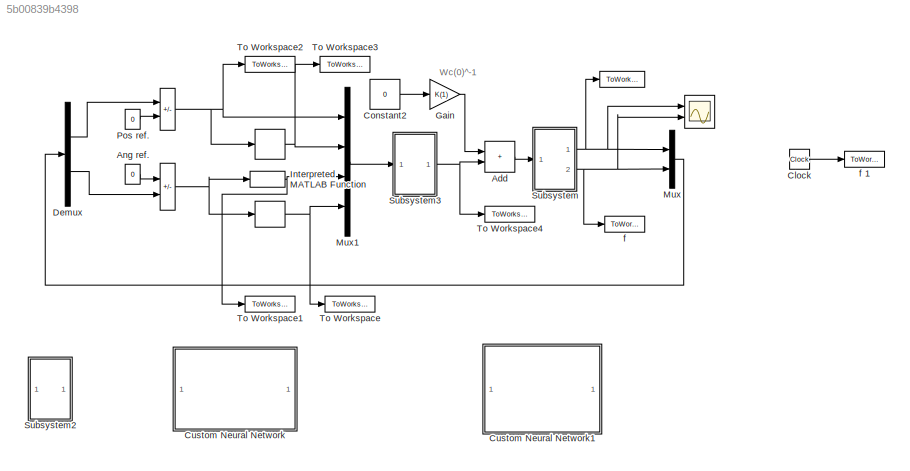
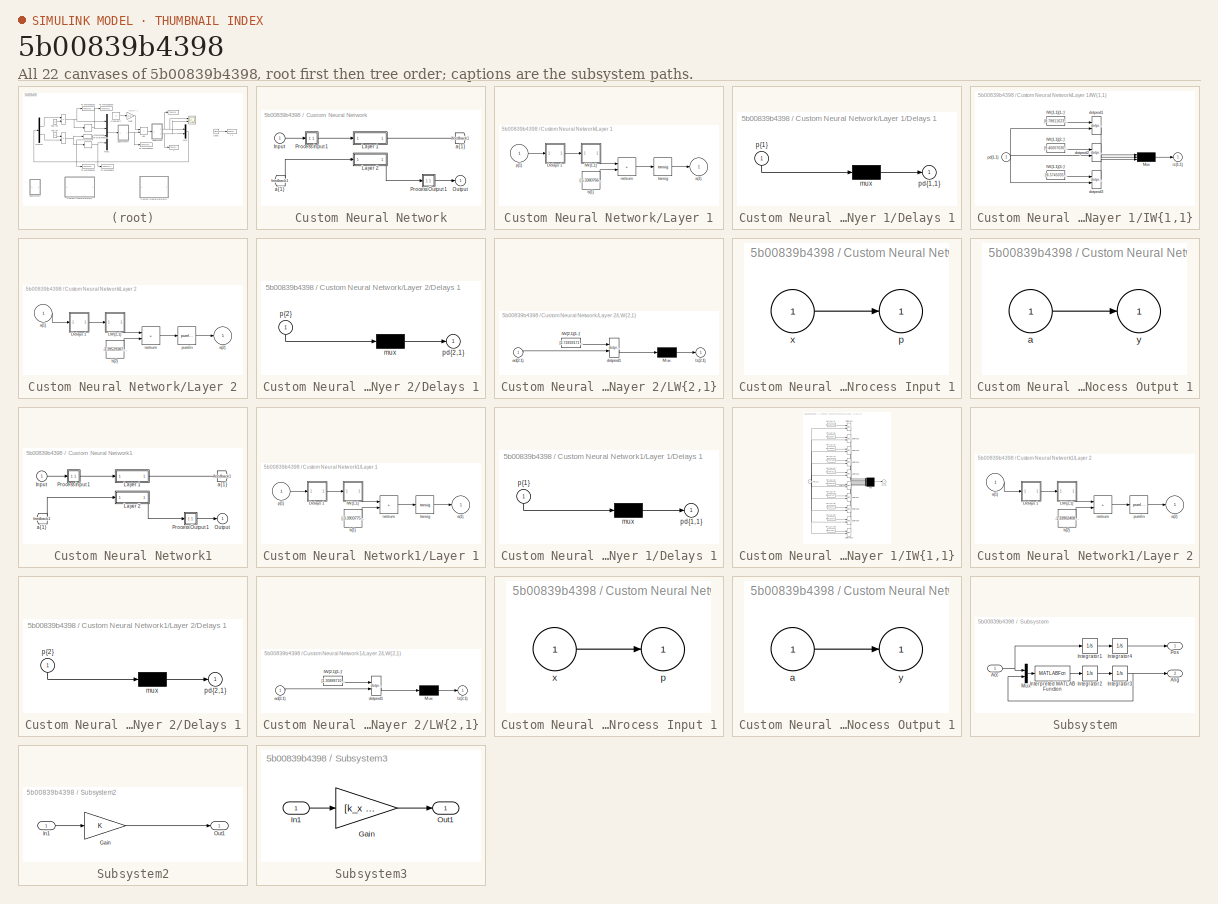
[diagram: thumbnail index - all 22 canvases of the model, root first then tree order]
MODEL slx_5b00839b4398
KIND model
CONFIG AbsTol = auto
CONFIG EnableMultiTasking = on
CONFIG FixedStep = 0.001
CONFIG MaxStep = 0.005
CONFIG MinStep = auto
CONFIG RelTol = 1e-3
CONFIG SampleTimeConstraint = Unconstrained
CONFIG SolverName = ode45
CONFIG StartTime = 0.0
CONFIG StopTime = 10
BLOCK [Sum]  
  IconShape = rectangular
  Inputs = -+
  Ports = [2, 1]
BLOCK [Derivative]   
BLOCK [Sum]      
  IconShape = rectangular
  Inputs = +-
  Ports = [2, 1]
BLOCK [Scope]       
  Floating = off
  NumInputPorts = 2
  Ports = [2]
  ScopeSpecificationString = C++SS(StrPVP('Location','[774, 99, 1317, 485]'),StrPVP('Open','off'),MxPVP('AxesTitles',54,'struct(''axes1'',''%<SignalLabel>'',''axes2'',''%<SignalLabel>'')'),MxPVP('ScopeGraphics',57,'struct(''FigureColor'',''[0.5 0.5 0.5]'',''AxesColor'',''[0 0 0]'',''AxesTickColor'',''[1 1 1]'',''LineColors'',''[1 1 0;1 0 1;0 1 1;1 0 0;0 1 0;0 0 1]'',''LineStyles'',''-|-|-|-|-|-'',''LineWidths'',''[0.5 0.5 0.5...<+336ch>
BLOCK [ToWorkspace]        
  MaxDataPoints = inf
  Ports = [1]
  SampleTime = 0.005
  VariableName = Pos
BLOCK [ToWorkspace]  f 
  MaxDataPoints = inf
  Ports = [1]
  SampleTime = 0.005
  VariableName = Ang
BLOCK [ToWorkspace]  f 1
  MaxDataPoints = inf
  Ports = [1]
  SampleTime = 0.005
  VariableName = Time
BLOCK [Sum] Add
  IconShape = rectangular
  Ports = [2, 1]
BLOCK [Constant] Ang ref.
  Value = 0
BLOCK [Clock] Clock
BLOCK [Constant] Constant2
  Value = 0
BLOCK [SubSystem] Custom Neural Network
  Ports = [1, 1]
  RequestExecContextInheritance = off
BLOCK [From] Custom Neural Network/ a{1} 
  GotoTag = feedback1
BLOCK [Inport] Custom Neural Network/Input
  PortDimensions = 4
BLOCK [SubSystem] Custom Neural Network/Layer 1
  Ports = [1, 1]
  RequestExecContextInheritance = off
BLOCK [SubSystem] Custom Neural Network/Layer 1/Delays 1
  Ports = [1, 1]
  RequestExecContextInheritance = off
BLOCK [Mux] Custom Neural Network/Layer 1/Delays 1/mux
  Inputs = 1
  Ports = [1, 1]
BLOCK [Outport] Custom Neural Network/Layer 1/Delays 1/pd{1,1}
BLOCK [Inport] Custom Neural Network/Layer 1/Delays 1/p{1}
  NameLocation = left
  PortDimensions = 4
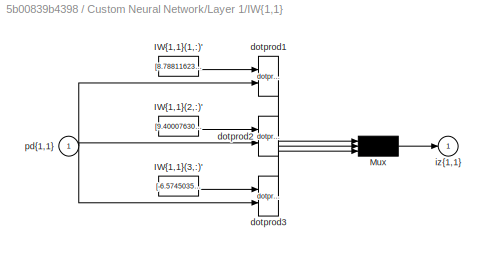
BLOCK [SubSystem] Custom Neural Network/Layer 1/IW{1,1}
  Ports = [1, 1]
  RequestExecContextInheritance = off
BLOCK [Constant] Custom Neural Network/Layer 1/IW{1,1}/IW{1,1}(1,:)'
  Value = [8.788116238367390309349502786062657833099365234375;2.211419440803642277870721954968757927417755126953125;-3.4270490483573556872443077736534178256988525390625;0.8696819432224425217015095768147148191928863525390625]
BLOCK [Constant] Custom Neural Network/Layer 1/IW{1,1}/IW{1,1}(2,:)'
  Value = [9.40007630482056555365488748066127300262451171875;-1.0231412537374680038482210875372402369976043701171875;1.23096216036136407723233787692151963710784912109375;0.8313740538845697525260902693844400346279144287109375]
BLOCK [Constant] Custom Neural Network/Layer 1/IW{1,1}/IW{1,1}(3,:)'
  Value = [-6.57450355673012065693683325662277638912200927734375;-0.347177306486717573985600893138325773179531097412109375;7.3748618595011823373397419345565140247344970703125;0.54792916693979598630193095232243649661540985107421875]
BLOCK [Mux] Custom Neural Network/Layer 1/IW{1,1}/Mux
  Inputs = 3
  Ports = [3, 1]
BLOCK [Reference] Custom Neural Network/Layer 1/IW{1,1}/dotprod1  REF=neural/Weight Functions/dotprod
  Ports = [2, 1]
  SourceBlock = neural/Weight Functions/dotprod
  SourceProductBaseCode = NN
  SourceType = DOTPROD
BLOCK [Reference] Custom Neural Network/Layer 1/IW{1,1}/dotprod2  REF=neural/Weight Functions/dotprod
  Ports = [2, 1]
  SourceBlock = neural/Weight Functions/dotprod
  SourceProductBaseCode = NN
  SourceType = DOTPROD
BLOCK [Reference] Custom Neural Network/Layer 1/IW{1,1}/dotprod3  REF=neural/Weight Functions/dotprod
  Ports = [2, 1]
  SourceBlock = neural/Weight Functions/dotprod
  SourceProductBaseCode = NN
  SourceType = DOTPROD
BLOCK [Outport] Custom Neural Network/Layer 1/IW{1,1}/iz{1,1}
BLOCK [Inport] Custom Neural Network/Layer 1/IW{1,1}/pd{1,1}
  PortDimensions = 4
BLOCK [Outport] Custom Neural Network/Layer 1/a{1}
  InitialOutput = [0;0;0]
BLOCK [Constant] Custom Neural Network/Layer 1/b{1}
  Value = [-5.33807660788202031909577272017486393451690673828125;-0.8507337902239300309048530834843404591083526611328125;1.3481654754592573564053736845380626618862152099609375]
BLOCK [Sum] Custom Neural Network/Layer 1/netsum
  IconShape = rectangular
  InputSameDT = on
  Inputs = 2
  OutDataTypeStr = Inherit: Same as first input
  Ports = [2, 1]
  SaturateOnIntegerOverflow = on
BLOCK [Inport] Custom Neural Network/Layer 1/p{1}
  PortDimensions = 4
BLOCK [Reference] Custom Neural Network/Layer 1/tansig  REF=neural/Transfer Functions/tansig
  Ports = [1, 1]
  SourceBlock = neural/Transfer Functions/tansig
  SourceProductBaseCode = NN
  SourceType = TANSIG
BLOCK [SubSystem] Custom Neural Network/Layer 2
  Ports = [1, 1]
  RequestExecContextInheritance = off
BLOCK [SubSystem] Custom Neural Network/Layer 2/Delays 1
  Ports = [1, 1]
  RequestExecContextInheritance = off
BLOCK [Mux] Custom Neural Network/Layer 2/Delays 1/mux
  Inputs = 1
  Ports = [1, 1]
BLOCK [Outport] Custom Neural Network/Layer 2/Delays 1/pd{2,1}
BLOCK [Inport] Custom Neural Network/Layer 2/Delays 1/p{2}
  NameLocation = left
  PortDimensions = 3
BLOCK [SubSystem] Custom Neural Network/Layer 2/LW{2,1}
  Ports = [1, 1]
  RequestExecContextInheritance = off
BLOCK [Constant] Custom Neural Network/Layer 2/LW{2,1}/IW{2,1}(1,:)'
  Value = [2.728391715390324545609246342792175710201263427734375;2.449347518211015373168493169941939413547515869140625;8.94903614505957278879577643238008022308349609375]
BLOCK [Mux] Custom Neural Network/Layer 2/LW{2,1}/Mux
  Inputs = 1
  Ports = [1, 1]
BLOCK [Inport] Custom Neural Network/Layer 2/LW{2,1}/ad{2,1}
  PortDimensions = 3
BLOCK [Reference] Custom Neural Network/Layer 2/LW{2,1}/dotprod1  REF=neural/Weight Functions/dotprod
  Ports = [2, 1]
  SourceBlock = neural/Weight Functions/dotprod
  SourceProductBaseCode = NN
  SourceType = DOTPROD
BLOCK [Outport] Custom Neural Network/Layer 2/LW{2,1}/lz{2,1}
BLOCK [Inport] Custom Neural Network/Layer 2/a{1} 
  PortDimensions = 3
BLOCK [Outport] Custom Neural Network/Layer 2/a{2}
  InitialOutput = 0
BLOCK [Constant] Custom Neural Network/Layer 2/b{2}
  Value = -3.395293879688609184341885338653810322284698486328125
BLOCK [Sum] Custom Neural Network/Layer 2/netsum
  IconShape = rectangular
  InputSameDT = on
  Inputs = 2
  OutDataTypeStr = Inherit: Same as first input
  Ports = [2, 1]
  SaturateOnIntegerOverflow = on
BLOCK [Reference] Custom Neural Network/Layer 2/purelin  REF=neural/Transfer Functions/purelin
  Ports = [1, 1]
  SourceBlock = neural/Transfer Functions/purelin
  SourceProductBaseCode = NN
  SourceType = PURELIN
BLOCK [Outport] Custom Neural Network/Output
  InitialOutput = 0
BLOCK [SubSystem] Custom Neural Network/Process Input 1
  Ports = [1, 1]
  RequestExecContextInheritance = off
BLOCK [Outport] Custom Neural Network/Process Input 1/p
  PortDimensions = 4
BLOCK [Inport] Custom Neural Network/Process Input 1/x
  PortDimensions = 4
BLOCK [SubSystem] Custom Neural Network/Process Output 1
  Ports = [1, 1]
  RequestExecContextInheritance = off
BLOCK [Inport] Custom Neural Network/Process Output 1/a
  PortDimensions = 1
BLOCK [Outport] Custom Neural Network/Process Output 1/y
  PortDimensions = 1
BLOCK [Goto] Custom Neural Network/a{1}
  GotoTag = feedback1
BLOCK [SubSystem] Custom Neural Network1
  Ports = [1, 1]
  RequestExecContextInheritance = off
BLOCK [From] Custom Neural Network1/ a{1} 
  GotoTag = feedback1
BLOCK [Inport] Custom Neural Network1/Input
  PortDimensions = 4
BLOCK [SubSystem] Custom Neural Network1/Layer 1
  Ports = [1, 1]
  RequestExecContextInheritance = off
BLOCK [SubSystem] Custom Neural Network1/Layer 1/Delays 1
  Ports = [1, 1]
  RequestExecContextInheritance = off
BLOCK [Mux] Custom Neural Network1/Layer 1/Delays 1/mux
  Inputs = 1
  Ports = [1, 1]
BLOCK [Outport] Custom Neural Network1/Layer 1/Delays 1/pd{1,1}
BLOCK [Inport] Custom Neural Network1/Layer 1/Delays 1/p{1}
  NameLocation = left
  PortDimensions = 4
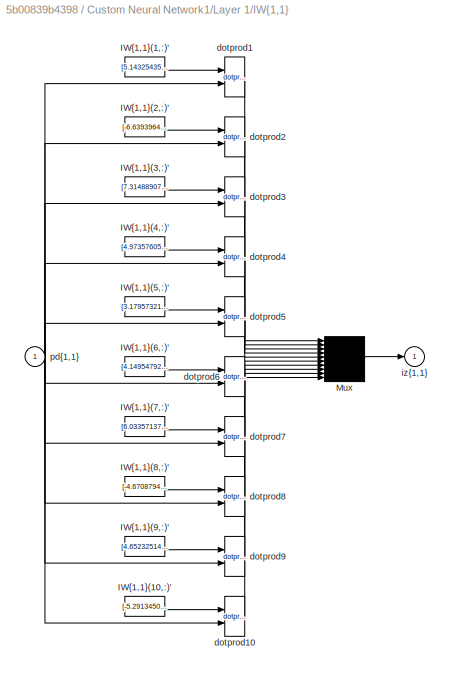
BLOCK [SubSystem] Custom Neural Network1/Layer 1/IW{1,1}
  Ports = [1, 1]
  RequestExecContextInheritance = off
BLOCK [Constant] Custom Neural Network1/Layer 1/IW{1,1}/IW{1,1}(1,:)'
  Value = [5.1432543552289455845993870752863585948944091796875;4.469391174233845021035449462942779064178466796875;-4.1927686933818364423132152296602725982666015625;-3.44472172027185674636484691291116178035736083984375]
BLOCK [Constant] Custom Neural Network1/Layer 1/IW{1,1}/IW{1,1}(10,:)'
  Value = [-5.29134503231588748661806675954721868038177490234375;-4.372850896115298979793806211091578006744384765625;11.37319168469418428912831586785614490509033203125;-0.2721661002850657151697078006691299378871917724609375]
BLOCK [Constant] Custom Neural Network1/Layer 1/IW{1,1}/IW{1,1}(2,:)'
  Value = [-6.6393964955801170191307392087765038013458251953125;-5.40320646231172663220831964281387627124786376953125;-2.51564538361761425022677940432913601398468017578125;-0.7509183490651754055988931213505566120147705078125]
BLOCK [Constant] Custom Neural Network1/Layer 1/IW{1,1}/IW{1,1}(3,:)'
  Value = [7.31488907967001811272211853065527975559234619140625;-3.167850398077953766318159978254698216915130615234375;11.016461689160319536995302769355475902557373046875;2.85105027438527969252390903420746326446533203125]
BLOCK [Constant] Custom Neural Network1/Layer 1/IW{1,1}/IW{1,1}(4,:)'
  Value = [4.97357605196770435895814443938434123992919921875;-3.15696404683693554460433006170205771923065185546875;7.92906744987438916183464243658818304538726806640625;-1.1834575779052325383844390671583823859691619873046875]
BLOCK [Constant] Custom Neural Network1/Layer 1/IW{1,1}/IW{1,1}(5,:)'
  Value = [3.17957321608935838952447738847695291042327880859375;-1.2856011122821267012028556564473547041416168212890625;-9.4088218152349707423809377360157668590545654296875;-2.810738899696803461125682588317431509494781494140625]
BLOCK [Constant] Custom Neural Network1/Layer 1/IW{1,1}/IW{1,1}(6,:)'
  Value = [4.149547925062268660667541553266346454620361328125;2.703979131322606921372653232538141310214996337890625;-1.14260681198289137938672865857370197772979736328125;-0.50596910030087638432405583444051444530487060546875]
BLOCK [Constant] Custom Neural Network1/Layer 1/IW{1,1}/IW{1,1}(7,:)'
  Value = [6.0335713723185566692563952528871595859527587890625;2.886312779991163868231751621351577341556549072265625;-1.957812224725926864010716599295847117900848388671875;7.03354953202478494489469085237942636013031005859375]
BLOCK [Constant] Custom Neural Network1/Layer 1/IW{1,1}/IW{1,1}(8,:)'
  Value = [-4.670879482405059235361477476544678211212158203125;-3.687614773339081608583001070655882358551025390625;10.20752542701369947053535724990069866180419921875;-3.262808084250979678841986242332495748996734619140625]
BLOCK [Constant] Custom Neural Network1/Layer 1/IW{1,1}/IW{1,1}(9,:)'
  Value = [4.65232514796957641323160714819096028804779052734375;3.38455617303662048556134323007427155971527099609375;8.19347156434329093599444604478776454925537109375;0.9301402998975494273992126181838102638721466064453125]
BLOCK [Mux] Custom Neural Network1/Layer 1/IW{1,1}/Mux
  Inputs = 10
  Ports = [10, 1]
BLOCK [Reference] Custom Neural Network1/Layer 1/IW{1,1}/dotprod1  REF=neural/Weight Functions/dotprod
  Ports = [2, 1]
  SourceBlock = neural/Weight Functions/dotprod
  SourceProductBaseCode = NN
  SourceType = DOTPROD
BLOCK [Reference] Custom Neural Network1/Layer 1/IW{1,1}/dotprod10  REF=neural/Weight Functions/dotprod
  Ports = [2, 1]
  SourceBlock = neural/Weight Functions/dotprod
  SourceProductBaseCode = NN
  SourceType = DOTPROD
BLOCK [Reference] Custom Neural Network1/Layer 1/IW{1,1}/dotprod2  REF=neural/Weight Functions/dotprod
  Ports = [2, 1]
  SourceBlock = neural/Weight Functions/dotprod
  SourceProductBaseCode = NN
  SourceType = DOTPROD
BLOCK [Reference] Custom Neural Network1/Layer 1/IW{1,1}/dotprod3  REF=neural/Weight Functions/dotprod
  Ports = [2, 1]
  SourceBlock = neural/Weight Functions/dotprod
  SourceProductBaseCode = NN
  SourceType = DOTPROD
BLOCK [Reference] Custom Neural Network1/Layer 1/IW{1,1}/dotprod4  REF=neural/Weight Functions/dotprod
  Ports = [2, 1]
  SourceBlock = neural/Weight Functions/dotprod
  SourceProductBaseCode = NN
  SourceType = DOTPROD
BLOCK [Reference] Custom Neural Network1/Layer 1/IW{1,1}/dotprod5  REF=neural/Weight Functions/dotprod
  Ports = [2, 1]
  SourceBlock = neural/Weight Functions/dotprod
  SourceProductBaseCode = NN
  SourceType = DOTPROD
BLOCK [Reference] Custom Neural Network1/Layer 1/IW{1,1}/dotprod6  REF=neural/Weight Functions/dotprod
  Ports = [2, 1]
  SourceBlock = neural/Weight Functions/dotprod
  SourceProductBaseCode = NN
  SourceType = DOTPROD
BLOCK [Reference] Custom Neural Network1/Layer 1/IW{1,1}/dotprod7  REF=neural/Weight Functions/dotprod
  Ports = [2, 1]
  SourceBlock = neural/Weight Functions/dotprod
  SourceProductBaseCode = NN
  SourceType = DOTPROD
BLOCK [Reference] Custom Neural Network1/Layer 1/IW{1,1}/dotprod8  REF=neural/Weight Functions/dotprod
  Ports = [2, 1]
  SourceBlock = neural/Weight Functions/dotprod
  SourceProductBaseCode = NN
  SourceType = DOTPROD
BLOCK [Reference] Custom Neural Network1/Layer 1/IW{1,1}/dotprod9  REF=neural/Weight Functions/dotprod
  Ports = [2, 1]
  SourceBlock = neural/Weight Functions/dotprod
  SourceProductBaseCode = NN
  SourceType = DOTPROD
BLOCK [Outport] Custom Neural Network1/Layer 1/IW{1,1}/iz{1,1}
BLOCK [Inport] Custom Neural Network1/Layer 1/IW{1,1}/pd{1,1}
  PortDimensions = 4
BLOCK [Outport] Custom Neural Network1/Layer 1/a{1}
  InitialOutput = [0;0;0;0;0;0;0;0;0;0]
BLOCK [Constant] Custom Neural Network1/Layer 1/b{1}
  Value = [-3.390377575891498462823392401332966983318328857421875;4.60794851418720430302755630691535770893096923828125;-2.678592471786632955854656756855547428131103515625;0.278246721004156205570012616590247489511966705322265625;-0.033799831666493529436223752782098017632961273193359375;-1.22539643870191827801363615435548126697540283203125;-2.279691349452515947149322528275661170482635498046875;2.9745859651923...<+141ch>
BLOCK [Sum] Custom Neural Network1/Layer 1/netsum
  IconShape = rectangular
  InputSameDT = on
  Inputs = 2
  OutDataTypeStr = Inherit: Same as first input
  Ports = [2, 1]
  SaturateOnIntegerOverflow = on
BLOCK [Inport] Custom Neural Network1/Layer 1/p{1}
  PortDimensions = 4
BLOCK [Reference] Custom Neural Network1/Layer 1/tansig  REF=neural/Transfer Functions/tansig
  Ports = [1, 1]
  SourceBlock = neural/Transfer Functions/tansig
  SourceProductBaseCode = NN
  SourceType = TANSIG
BLOCK [SubSystem] Custom Neural Network1/Layer 2
  Ports = [1, 1]
  RequestExecContextInheritance = off
BLOCK [SubSystem] Custom Neural Network1/Layer 2/Delays 1
  Ports = [1, 1]
  RequestExecContextInheritance = off
BLOCK [Mux] Custom Neural Network1/Layer 2/Delays 1/mux
  Inputs = 1
  Ports = [1, 1]
BLOCK [Outport] Custom Neural Network1/Layer 2/Delays 1/pd{2,1}
BLOCK [Inport] Custom Neural Network1/Layer 2/Delays 1/p{2}
  NameLocation = left
  PortDimensions = 10
BLOCK [SubSystem] Custom Neural Network1/Layer 2/LW{2,1}
  Ports = [1, 1]
  RequestExecContextInheritance = off
BLOCK [Constant] Custom Neural Network1/Layer 2/LW{2,1}/IW{2,1}(1,:)'
  Value = [1.30888710546423236991131489048711955547332763671875;-0.3632038085483875189396485438919626176357269287109375;0.0037598644263427127842902564225369133055210113525390625;0.075995879083810724541336867332574911415576934814453125;-0.259353152725069480144526323783793486654758453369140625;2.47897973950020666933369284379296004772186279296875;-0.02365206743952484591542173575362539850175380706787109375;-0.1...<+158ch>
BLOCK [Mux] Custom Neural Network1/Layer 2/LW{2,1}/Mux
  Inputs = 1
  Ports = [1, 1]
BLOCK [Inport] Custom Neural Network1/Layer 2/LW{2,1}/ad{2,1}
  PortDimensions = 10
BLOCK [Reference] Custom Neural Network1/Layer 2/LW{2,1}/dotprod1  REF=neural/Weight Functions/dotprod
  Ports = [2, 1]
  SourceBlock = neural/Weight Functions/dotprod
  SourceProductBaseCode = NN
  SourceType = DOTPROD
BLOCK [Outport] Custom Neural Network1/Layer 2/LW{2,1}/lz{2,1}
BLOCK [Inport] Custom Neural Network1/Layer 2/a{1} 
  PortDimensions = 10
BLOCK [Outport] Custom Neural Network1/Layer 2/a{2}
  InitialOutput = 0
BLOCK [Constant] Custom Neural Network1/Layer 2/b{2}
  Value = -1.33902408913108939003677733126096427440643310546875
BLOCK [Sum] Custom Neural Network1/Layer 2/netsum
  IconShape = rectangular
  InputSameDT = on
  Inputs = 2
  OutDataTypeStr = Inherit: Same as first input
  Ports = [2, 1]
  SaturateOnIntegerOverflow = on
BLOCK [Reference] Custom Neural Network1/Layer 2/purelin  REF=neural/Transfer Functions/purelin
  Ports = [1, 1]
  SourceBlock = neural/Transfer Functions/purelin
  SourceProductBaseCode = NN
  SourceType = PURELIN
BLOCK [Outport] Custom Neural Network1/Output
  InitialOutput = 0
BLOCK [SubSystem] Custom Neural Network1/Process Input 1
  Ports = [1, 1]
  RequestExecContextInheritance = off
BLOCK [Outport] Custom Neural Network1/Process Input 1/p
  PortDimensions = 4
BLOCK [Inport] Custom Neural Network1/Process Input 1/x
  PortDimensions = 4
BLOCK [SubSystem] Custom Neural Network1/Process Output 1
  Ports = [1, 1]
  RequestExecContextInheritance = off
BLOCK [Inport] Custom Neural Network1/Process Output 1/a
  PortDimensions = 1
BLOCK [Outport] Custom Neural Network1/Process Output 1/y
  PortDimensions = 1
BLOCK [Goto] Custom Neural Network1/a{1}
  GotoTag = feedback1
BLOCK [Demux] Demux
  Outputs = 2
  Ports = [1, 2]
BLOCK [Gain] Gain
  Gain = K(1)
BLOCK [MATLABFcn] Interpreted MATLAB Function
  MATLABFcn = change(u)
  Ports = [1, 1]
BLOCK [Mux] Mux
  DisplayOption = bar
  Inputs = 2
  Ports = [2, 1]
BLOCK [Mux] Mux1
  DisplayOption = bar
  Ports = [4, 1]
BLOCK [Constant] Pos ref.
  Value = 0
BLOCK [SubSystem] Subsystem
  Ports = [1, 2]
  RequestExecContextInheritance = off
BLOCK [Inport] Subsystem/Acc
BLOCK [Outport] Subsystem/Ang
  Port = 2
BLOCK [Integrator] Subsystem/Integrator1
  Ports = [1, 1]
BLOCK [Integrator] Subsystem/Integrator2
  Ports = [1, 1]
BLOCK [Integrator] Subsystem/Integrator3
  InitialCondition = 10*pi/180
  Ports = [1, 1]
BLOCK [Integrator] Subsystem/Integrator4
  Ports = [1, 1]
BLOCK [MATLABFcn] Subsystem/Interpreted MATLAB Function
  MATLABFcn = lqr1_funtion(u)
  Output1D = off
  OutputDimensions = 1
  Ports = [1, 1]
BLOCK [Mux] Subsystem/Mux
  DisplayOption = bar
  Inputs = 2
  Ports = [2, 1]
BLOCK [Outport] Subsystem/Pos
BLOCK [SubSystem] Subsystem2
  Ports = [1, 1]
  RequestExecContextInheritance = off
BLOCK [Gain] Subsystem2/Gain
  Gain = K
  Multiplication = Matrix(K*u) (u vector)
BLOCK [Inport] Subsystem2/In1
BLOCK [Outport] Subsystem2/Out1
BLOCK [SubSystem] Subsystem3
  Ports = [1, 1]
  RequestExecContextInheritance = off
BLOCK [Gain] Subsystem3/Gain
  Gain = [k_x   k_dot_x  k_ang    k_dot_ang]
  Multiplication = Matrix(K*u) (u vector)
BLOCK [Inport] Subsystem3/In1
BLOCK [Outport] Subsystem3/Out1
BLOCK [ToWorkspace] To Workspace
  FixptAsFi = on
  MaxDataPoints = inf
  Ports = [1]
  SampleTime = -1
  VariableName = GSF_ang1
BLOCK [ToWorkspace] To Workspace1
  FixptAsFi = on
  MaxDataPoints = inf
  Ports = [1]
  SampleTime = -1
  VariableName = GSF_ang
BLOCK [ToWorkspace] To Workspace2
  FixptAsFi = on
  MaxDataPoints = inf
  Ports = [1]
  SampleTime = -1
  VariableName = GSF_pos
BLOCK [ToWorkspace] To Workspace3
  FixptAsFi = on
  MaxDataPoints = inf
  Ports = [1]
  SampleTime = -1
  VariableName = GSF_pos1
BLOCK [ToWorkspace] To Workspace4
  FixptAsFi = on
  MaxDataPoints = inf
  Ports = [1]
  SampleTime = -1
  VariableName = GSF_acc
ANNOTATION (root): Wc(0)^-1
NET      :1 ->   :1, Interpreted MATLAB Function:1
NET   :1 -> Mux1:4, To Workspace:1
NET  :1 ->  :1, Mux1:1, Mux1:2, To Workspace2:1, To Workspace3:1
LINE Add:1 -> Subsystem:1
LINE Ang ref.:1 ->      :1
LINE Clock:1 ->  f 1:1
LINE Constant2:1 -> Gain:1
LINE Custom Neural Network/ a{1} :1 -> Custom Neural Network/Layer 2:1
LINE Custom Neural Network/Input:1 -> Custom Neural Network/Process Input 1:1
LINE Custom Neural Network/Layer 1/Delays 1/mux:1 -> Custom Neural Network/Layer 1/Delays 1/pd{1,1}:1
LINE Custom Neural Network/Layer 1/Delays 1/p{1}:1 -> Custom Neural Network/Layer 1/Delays 1/mux:1
LINE Custom Neural Network/Layer 1/Delays 1:1 -> Custom Neural Network/Layer 1/IW{1,1}:1
LINE Custom Neural Network/Layer 1/IW{1,1}/IW{1,1}(1,:)':1 -> Custom Neural Network/Layer 1/IW{1,1}/dotprod1:1
LINE Custom Neural Network/Layer 1/IW{1,1}/IW{1,1}(2,:)':1 -> Custom Neural Network/Layer 1/IW{1,1}/dotprod2:1
LINE Custom Neural Network/Layer 1/IW{1,1}/IW{1,1}(3,:)':1 -> Custom Neural Network/Layer 1/IW{1,1}/dotprod3:1
LINE Custom Neural Network/Layer 1/IW{1,1}/Mux:1 -> Custom Neural Network/Layer 1/IW{1,1}/iz{1,1}:1
LINE Custom Neural Network/Layer 1/IW{1,1}/dotprod1:1 -> Custom Neural Network/Layer 1/IW{1,1}/Mux:1
LINE Custom Neural Network/Layer 1/IW{1,1}/dotprod2:1 -> Custom Neural Network/Layer 1/IW{1,1}/Mux:2
LINE Custom Neural Network/Layer 1/IW{1,1}/dotprod3:1 -> Custom Neural Network/Layer 1/IW{1,1}/Mux:3
NET Custom Neural Network/Layer 1/IW{1,1}/pd{1,1}:1 -> Custom Neural Network/Layer 1/IW{1,1}/dotprod1:2, Custom Neural Network/Layer 1/IW{1,1}/dotprod2:2, Custom Neural Network/Layer 1/IW{1,1}/dotprod3:2
LINE Custom Neural Network/Layer 1/IW{1,1}:1 -> Custom Neural Network/Layer 1/netsum:1
LINE Custom Neural Network/Layer 1/b{1}:1 -> Custom Neural Network/Layer 1/netsum:2
LINE Custom Neural Network/Layer 1/netsum:1 -> Custom Neural Network/Layer 1/tansig:1
LINE Custom Neural Network/Layer 1/p{1}:1 -> Custom Neural Network/Layer 1/Delays 1:1
LINE Custom Neural Network/Layer 1/tansig:1 -> Custom Neural Network/Layer 1/a{1}:1
LINE Custom Neural Network/Layer 1:1 -> Custom Neural Network/a{1}:1
LINE Custom Neural Network/Layer 2/Delays 1/mux:1 -> Custom Neural Network/Layer 2/Delays 1/pd{2,1}:1
LINE Custom Neural Network/Layer 2/Delays 1/p{2}:1 -> Custom Neural Network/Layer 2/Delays 1/mux:1
LINE Custom Neural Network/Layer 2/Delays 1:1 -> Custom Neural Network/Layer 2/LW{2,1}:1
LINE Custom Neural Network/Layer 2/LW{2,1}/IW{2,1}(1,:)':1 -> Custom Neural Network/Layer 2/LW{2,1}/dotprod1:1
LINE Custom Neural Network/Layer 2/LW{2,1}/Mux:1 -> Custom Neural Network/Layer 2/LW{2,1}/lz{2,1}:1
LINE Custom Neural Network/Layer 2/LW{2,1}/ad{2,1}:1 -> Custom Neural Network/Layer 2/LW{2,1}/dotprod1:2
LINE Custom Neural Network/Layer 2/LW{2,1}/dotprod1:1 -> Custom Neural Network/Layer 2/LW{2,1}/Mux:1
LINE Custom Neural Network/Layer 2/LW{2,1}:1 -> Custom Neural Network/Layer 2/netsum:1
LINE Custom Neural Network/Layer 2/a{1} :1 -> Custom Neural Network/Layer 2/Delays 1:1
LINE Custom Neural Network/Layer 2/b{2}:1 -> Custom Neural Network/Layer 2/netsum:2
LINE Custom Neural Network/Layer 2/netsum:1 -> Custom Neural Network/Layer 2/purelin:1
LINE Custom Neural Network/Layer 2/purelin:1 -> Custom Neural Network/Layer 2/a{2}:1
LINE Custom Neural Network/Layer 2:1 -> Custom Neural Network/Process Output 1:1
LINE Custom Neural Network/Process Input 1/x:1 -> Custom Neural Network/Process Input 1/p:1
LINE Custom Neural Network/Process Input 1:1 -> Custom Neural Network/Layer 1:1
LINE Custom Neural Network/Process Output 1/a:1 -> Custom Neural Network/Process Output 1/y:1
LINE Custom Neural Network/Process Output 1:1 -> Custom Neural Network/Output:1
LINE Custom Neural Network1/ a{1} :1 -> Custom Neural Network1/Layer 2:1
LINE Custom Neural Network1/Input:1 -> Custom Neural Network1/Process Input 1:1
LINE Custom Neural Network1/Layer 1/Delays 1/mux:1 -> Custom Neural Network1/Layer 1/Delays 1/pd{1,1}:1
LINE Custom Neural Network1/Layer 1/Delays 1/p{1}:1 -> Custom Neural Network1/Layer 1/Delays 1/mux:1
LINE Custom Neural Network1/Layer 1/Delays 1:1 -> Custom Neural Network1/Layer 1/IW{1,1}:1
LINE Custom Neural Network1/Layer 1/IW{1,1}/IW{1,1}(1,:)':1 -> Custom Neural Network1/Layer 1/IW{1,1}/dotprod1:1
LINE Custom Neural Network1/Layer 1/IW{1,1}/IW{1,1}(10,:)':1 -> Custom Neural Network1/Layer 1/IW{1,1}/dotprod10:1
LINE Custom Neural Network1/Layer 1/IW{1,1}/IW{1,1}(2,:)':1 -> Custom Neural Network1/Layer 1/IW{1,1}/dotprod2:1
LINE Custom Neural Network1/Layer 1/IW{1,1}/IW{1,1}(3,:)':1 -> Custom Neural Network1/Layer 1/IW{1,1}/dotprod3:1
LINE Custom Neural Network1/Layer 1/IW{1,1}/IW{1,1}(4,:)':1 -> Custom Neural Network1/Layer 1/IW{1,1}/dotprod4:1
LINE Custom Neural Network1/Layer 1/IW{1,1}/IW{1,1}(5,:)':1 -> Custom Neural Network1/Layer 1/IW{1,1}/dotprod5:1
LINE Custom Neural Network1/Layer 1/IW{1,1}/IW{1,1}(6,:)':1 -> Custom Neural Network1/Layer 1/IW{1,1}/dotprod6:1
LINE Custom Neural Network1/Layer 1/IW{1,1}/IW{1,1}(7,:)':1 -> Custom Neural Network1/Layer 1/IW{1,1}/dotprod7:1
LINE Custom Neural Network1/Layer 1/IW{1,1}/IW{1,1}(8,:)':1 -> Custom Neural Network1/Layer 1/IW{1,1}/dotprod8:1
LINE Custom Neural Network1/Layer 1/IW{1,1}/IW{1,1}(9,:)':1 -> Custom Neural Network1/Layer 1/IW{1,1}/dotprod9:1
LINE Custom Neural Network1/Layer 1/IW{1,1}/Mux:1 -> Custom Neural Network1/Layer 1/IW{1,1}/iz{1,1}:1
LINE Custom Neural Network1/Layer 1/IW{1,1}/dotprod10:1 -> Custom Neural Network1/Layer 1/IW{1,1}/Mux:10
LINE Custom Neural Network1/Layer 1/IW{1,1}/dotprod1:1 -> Custom Neural Network1/Layer 1/IW{1,1}/Mux:1
LINE Custom Neural Network1/Layer 1/IW{1,1}/dotprod2:1 -> Custom Neural Network1/Layer 1/IW{1,1}/Mux:2
LINE Custom Neural Network1/Layer 1/IW{1,1}/dotprod3:1 -> Custom Neural Network1/Layer 1/IW{1,1}/Mux:3
LINE Custom Neural Network1/Layer 1/IW{1,1}/dotprod4:1 -> Custom Neural Network1/Layer 1/IW{1,1}/Mux:4
LINE Custom Neural Network1/Layer 1/IW{1,1}/dotprod5:1 -> Custom Neural Network1/Layer 1/IW{1,1}/Mux:5
LINE Custom Neural Network1/Layer 1/IW{1,1}/dotprod6:1 -> Custom Neural Network1/Layer 1/IW{1,1}/Mux:6
LINE Custom Neural Network1/Layer 1/IW{1,1}/dotprod7:1 -> Custom Neural Network1/Layer 1/IW{1,1}/Mux:7
LINE Custom Neural Network1/Layer 1/IW{1,1}/dotprod8:1 -> Custom Neural Network1/Layer 1/IW{1,1}/Mux:8
LINE Custom Neural Network1/Layer 1/IW{1,1}/dotprod9:1 -> Custom Neural Network1/Layer 1/IW{1,1}/Mux:9
NET Custom Neural Network1/Layer 1/IW{1,1}/pd{1,1}:1 -> Custom Neural Network1/Layer 1/IW{1,1}/dotprod10:2, Custom Neural Network1/Layer 1/IW{1,1}/dotprod1:2, Custom Neural Network1/Layer 1/IW{1,1}/dotprod2:2, Custom Neural Network1/Layer 1/IW{1,1}/dotprod3:2, Custom Neural Network1/Layer 1/IW{1,1}/dotprod4:2, Custom Neural Network1/Layer 1/IW{1,1}/dotprod5:2, Custom Neural Network1/Layer 1/IW{1,1}/dotprod6:2, Custom Neural Network1/Layer 1/IW{1,1}/dotprod7:2, Custom Neural Network1/Layer 1/IW{1,1}/dotprod8:2, Custom Neural Network1/Layer 1/IW{1,1}/dotprod9:2
LINE Custom Neural Network1/Layer 1/IW{1,1}:1 -> Custom Neural Network1/Layer 1/netsum:1
LINE Custom Neural Network1/Layer 1/b{1}:1 -> Custom Neural Network1/Layer 1/netsum:2
LINE Custom Neural Network1/Layer 1/netsum:1 -> Custom Neural Network1/Layer 1/tansig:1
LINE Custom Neural Network1/Layer 1/p{1}:1 -> Custom Neural Network1/Layer 1/Delays 1:1
LINE Custom Neural Network1/Layer 1/tansig:1 -> Custom Neural Network1/Layer 1/a{1}:1
LINE Custom Neural Network1/Layer 1:1 -> Custom Neural Network1/a{1}:1
LINE Custom Neural Network1/Layer 2/Delays 1/mux:1 -> Custom Neural Network1/Layer 2/Delays 1/pd{2,1}:1
LINE Custom Neural Network1/Layer 2/Delays 1/p{2}:1 -> Custom Neural Network1/Layer 2/Delays 1/mux:1
LINE Custom Neural Network1/Layer 2/Delays 1:1 -> Custom Neural Network1/Layer 2/LW{2,1}:1
LINE Custom Neural Network1/Layer 2/LW{2,1}/IW{2,1}(1,:)':1 -> Custom Neural Network1/Layer 2/LW{2,1}/dotprod1:1
LINE Custom Neural Network1/Layer 2/LW{2,1}/Mux:1 -> Custom Neural Network1/Layer 2/LW{2,1}/lz{2,1}:1
LINE Custom Neural Network1/Layer 2/LW{2,1}/ad{2,1}:1 -> Custom Neural Network1/Layer 2/LW{2,1}/dotprod1:2
LINE Custom Neural Network1/Layer 2/LW{2,1}/dotprod1:1 -> Custom Neural Network1/Layer 2/LW{2,1}/Mux:1
LINE Custom Neural Network1/Layer 2/LW{2,1}:1 -> Custom Neural Network1/Layer 2/netsum:1
LINE Custom Neural Network1/Layer 2/a{1} :1 -> Custom Neural Network1/Layer 2/Delays 1:1
LINE Custom Neural Network1/Layer 2/b{2}:1 -> Custom Neural Network1/Layer 2/netsum:2
LINE Custom Neural Network1/Layer 2/netsum:1 -> Custom Neural Network1/Layer 2/purelin:1
LINE Custom Neural Network1/Layer 2/purelin:1 -> Custom Neural Network1/Layer 2/a{2}:1
LINE Custom Neural Network1/Layer 2:1 -> Custom Neural Network1/Process Output 1:1
LINE Custom Neural Network1/Process Input 1/x:1 -> Custom Neural Network1/Process Input 1/p:1
LINE Custom Neural Network1/Process Input 1:1 -> Custom Neural Network1/Layer 1:1
LINE Custom Neural Network1/Process Output 1/a:1 -> Custom Neural Network1/Process Output 1/y:1
LINE Custom Neural Network1/Process Output 1:1 -> Custom Neural Network1/Output:1
LINE Demux:1 ->  :1
LINE Demux:2 ->      :2
LINE Gain:1 -> Add:1
NET Interpreted MATLAB Function:1 -> Mux1:3, To Workspace1:1
LINE Mux1:1 -> Subsystem3:1
LINE Mux:1 -> Demux:1
LINE Pos ref.:1 ->  :2
NET Subsystem/Acc:1 -> Subsystem/Integrator1:1, Subsystem/Mux:1
LINE Subsystem/Integrator1:1 -> Subsystem/Integrator4:1
LINE Subsystem/Integrator2:1 -> Subsystem/Integrator3:1
NET Subsystem/Integrator3:1 -> Subsystem/Ang:1, Subsystem/Mux:2
LINE Subsystem/Integrator4:1 -> Subsystem/Pos:1
LINE Subsystem/Interpreted MATLAB Function:1 -> Subsystem/Integrator2:1
LINE Subsystem/Mux:1 -> Subsystem/Interpreted MATLAB Function:1
LINE Subsystem2/Gain:1 -> Subsystem2/Out1:1
LINE Subsystem2/In1:1 -> Subsystem2/Gain:1
LINE Subsystem3/Gain:1 -> Subsystem3/Out1:1
LINE Subsystem3/In1:1 -> Subsystem3/Gain:1
NET Subsystem3:1 -> Add:2, To Workspace4:1
NET Subsystem:1 ->        :1,       :1, Mux:1
NET Subsystem:2 ->       :2,  f :1, Mux:2
note: NET lines group one-source signal fan-out (src -> all destinations, sorted); 1:1 wires keep LINE
